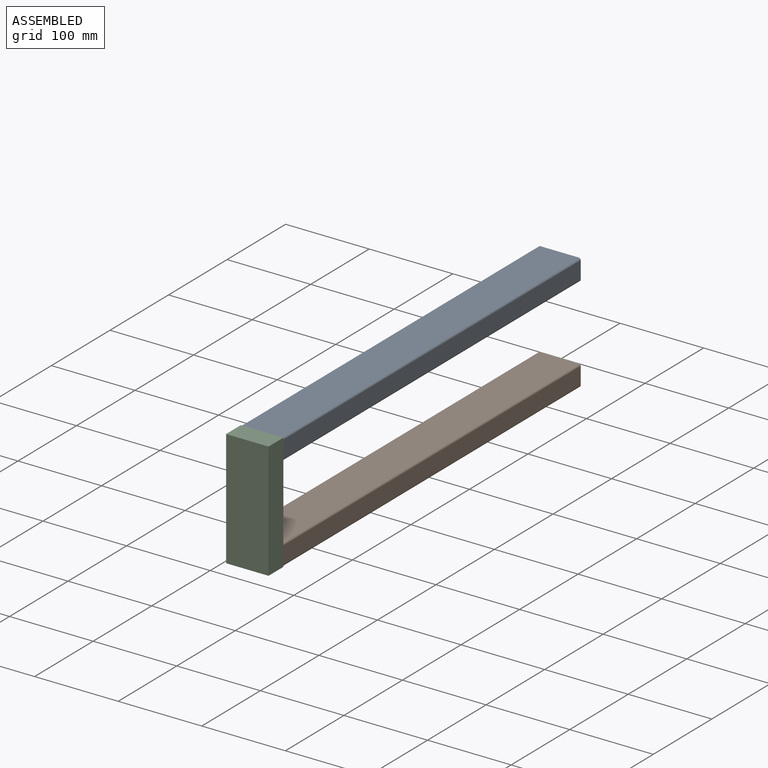
[diagram: assembled view]
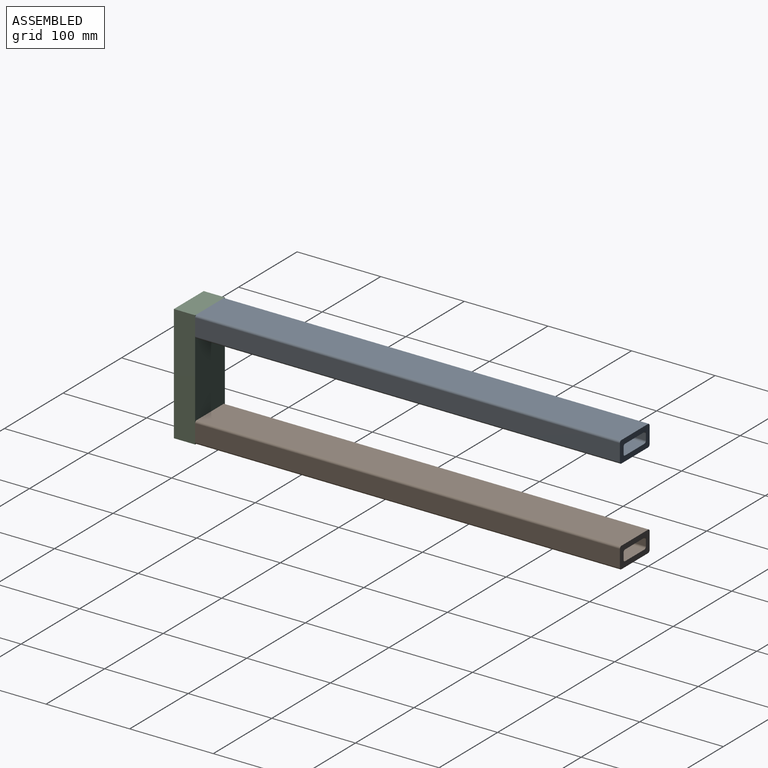
[diagram: assembled view, second angle]
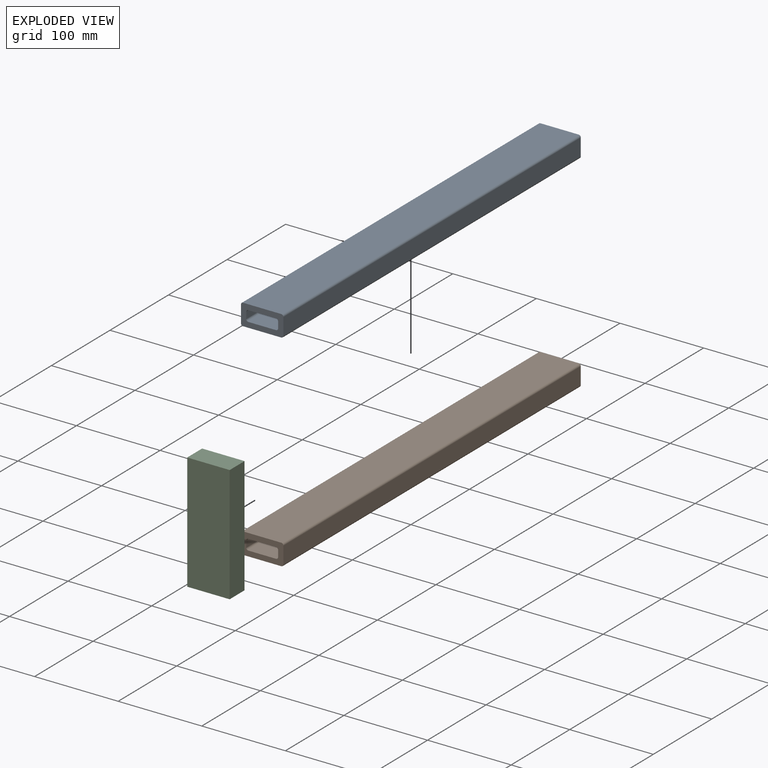
[diagram: exploded view]
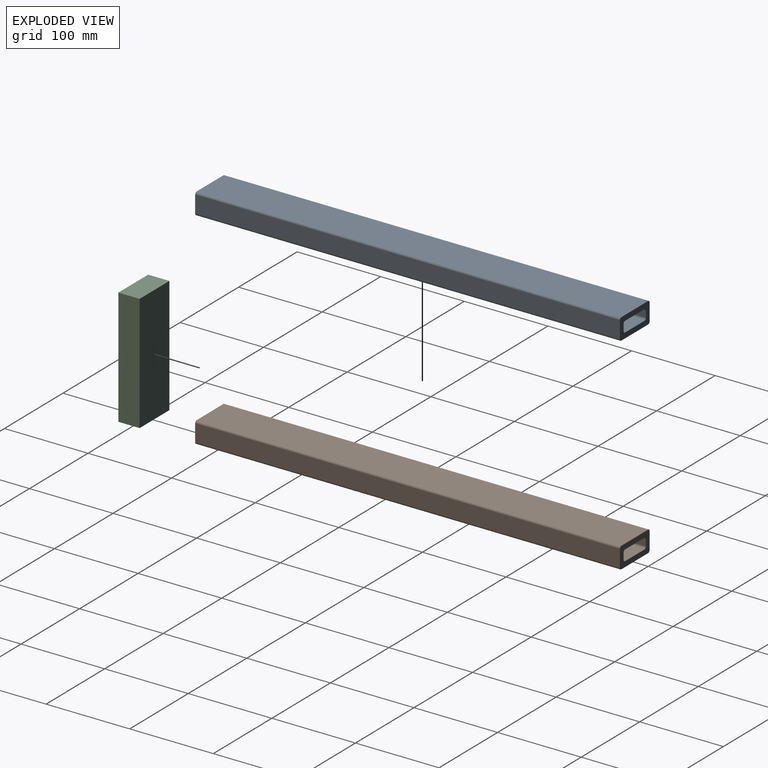
[diagram: exploded view, second angle]
ASSEMBLY  parts=3 mates=5
PART A: 18 faces, bbox 25.4x508x50.8 mm
  f0: plane 508x45.72mm, normal (1,0,0), area 23225.8mm2, adj f1,f15,f16,f17
  f1: cylinder r=2.54mm len=508mm, axis (0,1,0), area 2026.8mm2, adj f0,f2,f16,f17
  f2: plane 508x20.32mm, normal (0,0,1), area 10322.6mm2, adj f1,f3,f16,f17
  f3: cylinder r=2.54mm len=508mm, axis (0,1,0), area 2026.8mm2, adj f2,f4,f16,f17
  f4: plane 508x45.72mm, normal (-1,0,0), area 23225.8mm2, adj f3,f5,f16,f17
  f5: cylinder r=2.54mm len=508mm, axis (0,1,0), area 2026.8mm2, adj f4,f6,f16,f17
  f6: plane 508x20.32mm, normal (0,0,-1), area 10322.6mm2, adj f5,f15,f16,f17
  f7: cylinder r=2.54mm len=508mm, axis (0,1,0), area 2026.8mm2, adj f8,f14,f16,f17
  f8: plane 508x33.02mm, normal (1,0,0), area 16774.2mm2, adj f7,f9,f16,f17
  f9: cylinder r=2.54mm len=508mm, axis (0,1,0), area 2026.8mm2, adj f8,f10,f16,f17
  f10: plane 508x7.62mm, normal (0,0,-1), area 3871mm2, adj f9,f11,f16,f17
  f11: cylinder r=2.54mm len=508mm, axis (0,1,0), area 2026.8mm2, adj f10,f12,f16,f17
  f12: plane 508x33.02mm, normal (-1,0,0), area 16774.2mm2, adj f11,f13,f16,f17
  f13: cylinder r=2.54mm len=508mm, axis (0,1,0), area 2026.8mm2, adj f12,f14,f16,f17
  f14: plane 508x7.62mm, normal (0,0,1), area 3871mm2, adj f7,f13,f16,f17
  f15: cylinder r=2.54mm len=508mm, axis (0,1,0), area 2026.8mm2, adj f0,f6,f16,f17
  f16: plane 50.8x25.4mm, normal (0,-1,0), area 806.5mm2, adj f0,f1,f2,f3,f4,f5,f6,f7
  f17: plane 50.8x25.4mm, normal (0,1,0), area 806.5mm2, adj f0,f1,f2,f3,f4,f5,f6,f7
PART B: same geometry as A
PART C: 6 faces, bbox 139.7x25.4x50.8 mm
  f0: plane 50.8x25.4mm, normal (-1,0,0), area 1290.3mm2, adj f1,f3,f4,f5
  f1: plane 139.7x25.4mm, normal (0,0,-1), area 3548.4mm2, adj f0,f2,f4,f5
  f2: plane 50.8x25.4mm, normal (1,0,0), area 1290.3mm2, adj f1,f3,f4,f5
  f3: plane 139.7x25.4mm, normal (0,0,1), area 3548.4mm2, adj f0,f2,f4,f5
  f4: plane 139.7x50.8mm, normal (0,-1,0), area 7096.8mm2, adj f0,f1,f2,f3
  f5: plane 139.7x50.8mm, normal (0,1,0), area 7096.8mm2, adj f0,f1,f2,f3
PLACE A rot(axis=(0,-1,0),90deg) t=(19.05,254,-19.05)mm
PLACE B rot(axis=(0,1,0),90deg) t=(-19.05,254,-120.65)mm
PLACE C rot(axis=(0,-1,0),90deg) t=(25.4,-254,-139.7)mm
MATE planar C.f2 <-> A.f0  axis (0,0,1) through (0,-254,0)mm
MATE fastened C.f2 <-> A.f0  axis (0,0,1) through (0,-254,0)mm
MATE planar C.f2 <-> A.f0  axis (0,0,1) through (0,-254,0)mm
MATE fastened C.f0 <-> B.f0  axis (0,0,-1) through (0,-254,-139.7)mm
MATE planar C.f2 <-> A.f0  axis (0,0,1) through (0,-254,0)mm
